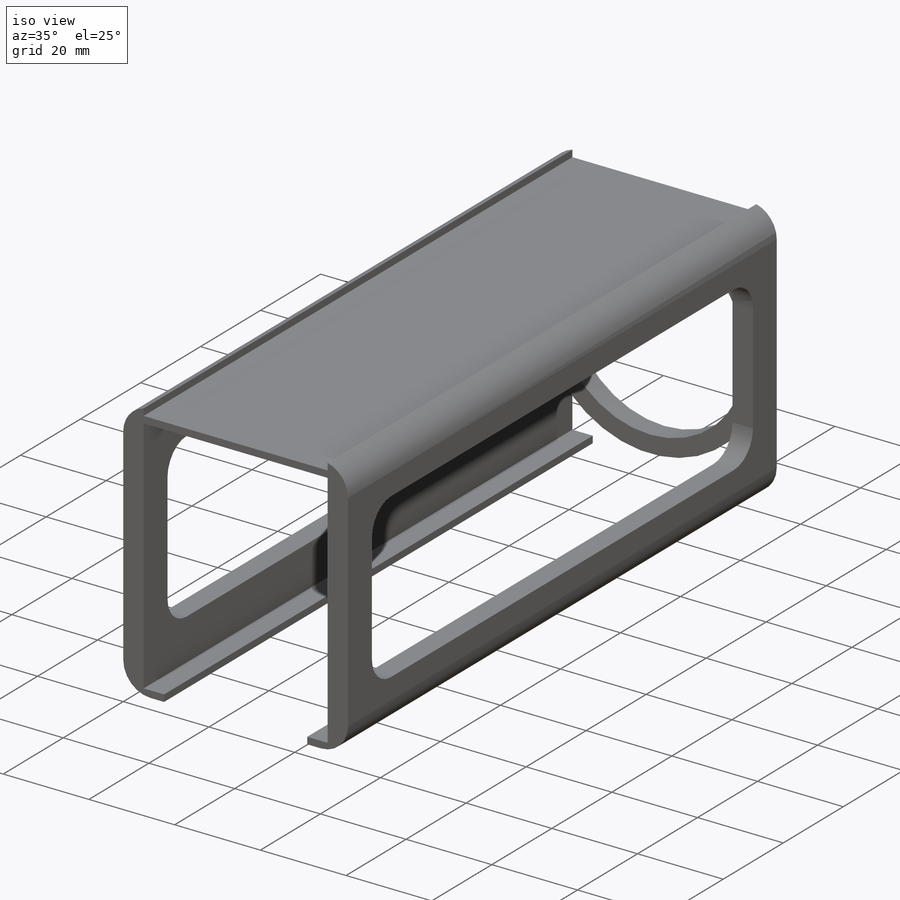
[diagram: iso view]
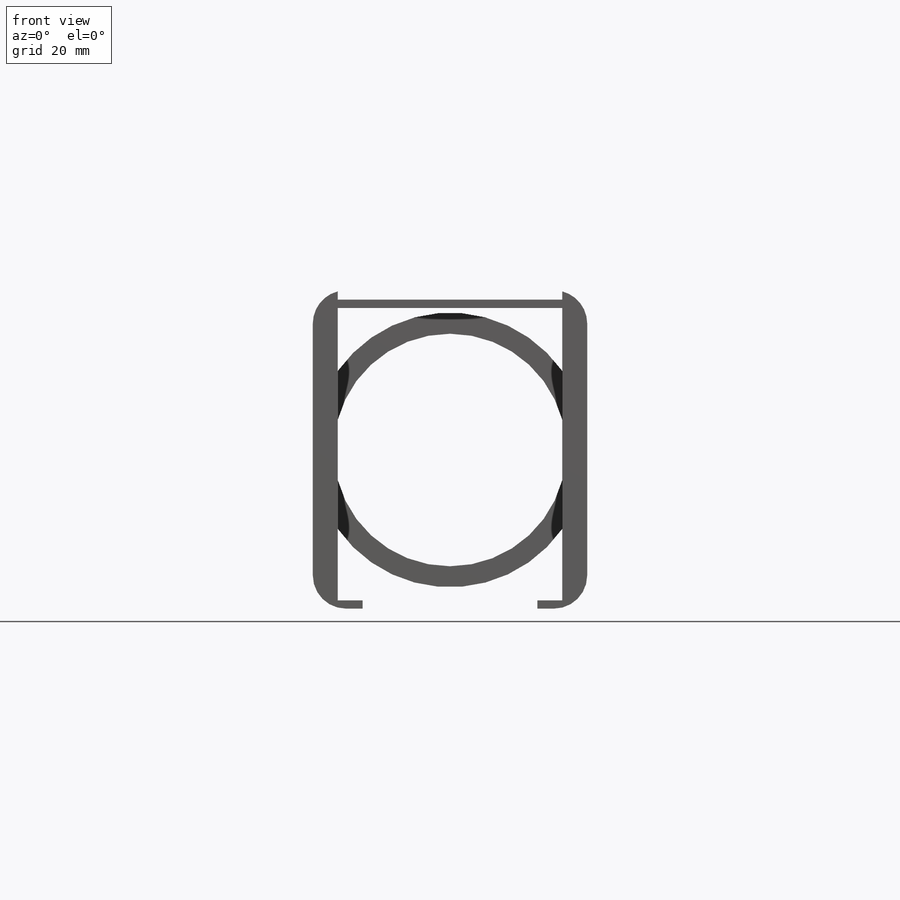
[diagram: front view]
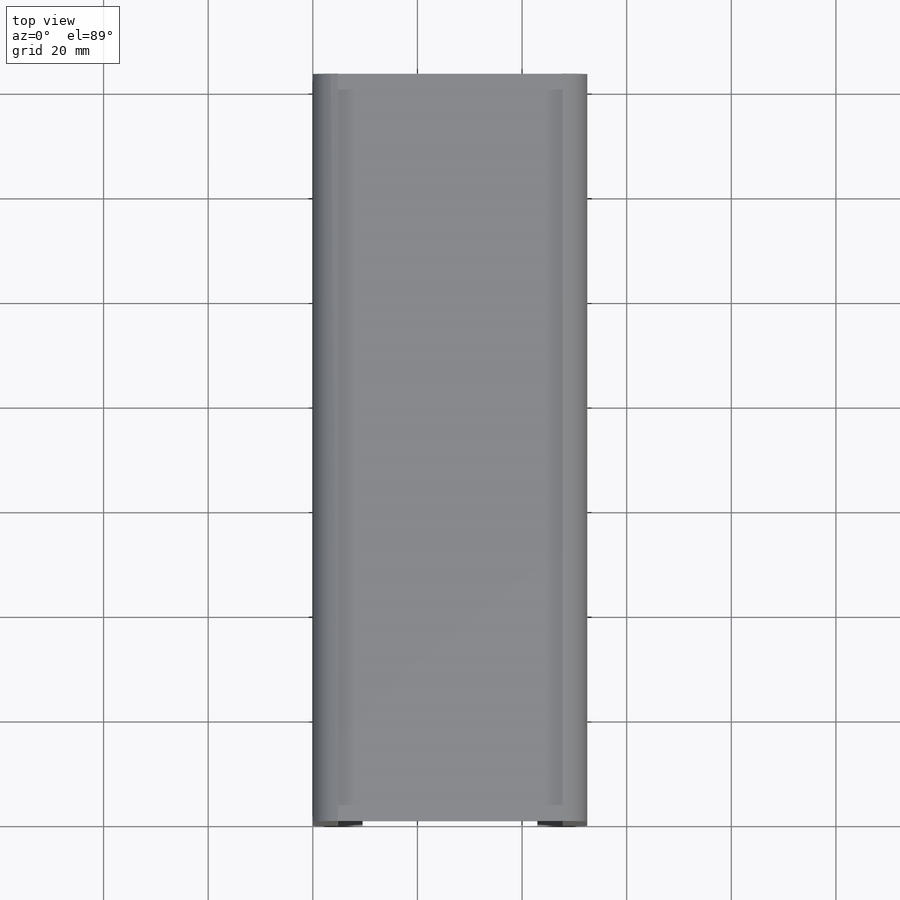
[diagram: top view]
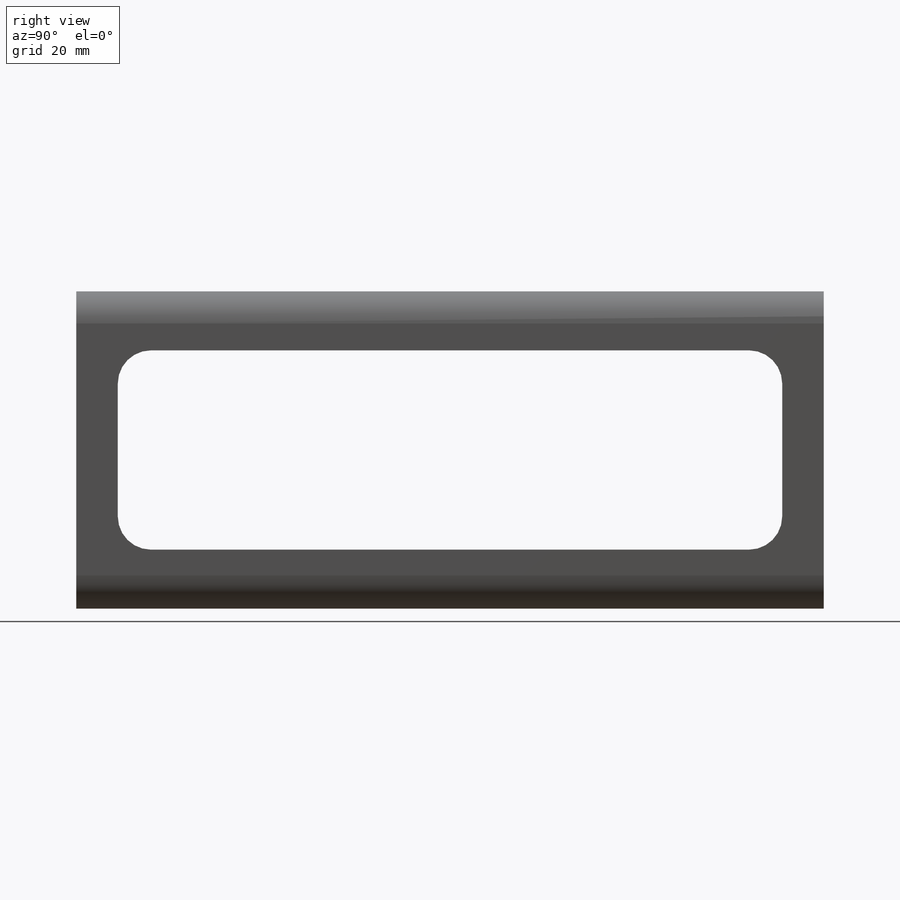
[diagram: right view]
SOLIDWORKS PART (.sldprt)
format: sldprt  version: not decoded by parser v0  size: 309,760 bytes
history: native  units: mm
features: sketch x5, extrude x4, fillet x2, material x1, cut_extrude x1 (+11 scaffold rows collapsed)
feature tree (24):
  scaffold x11  (default folders/planes/origin — collapsed)
  material  "ABS"
  sketch  "Sketch1"  dims[D1=4.7625mm D2=142.875mm D3=4.7625mm D4=42.926mm D5=42.926mm]
  extrude  "Boss-Extrude1"  Depth=1.5875mm
  sketch  "Sketch2"
  extrude  "Boss-Extrude2"  Depth=59.055mm
  sketch  "Sketch3"  dims[D1=127.0mm D2=38.1mm]
  cut_extrude  "Cut-Extrude1"  [1 undecoded]
  sketch  "Sketch4"  dims[D1=44.45mm]
  extrude  "Boss-Extrude3"  Depth=4.7625mm
  sketch  "Sketch5"  dims[c1.D1=6.35mm c1.D2=4.7625mm c1.D3=44.45mm c2.D1=~56.67375mm c2.D2=~0.79375mm]
  fillet  "Fillet1"  Radius=6.35mm
  fillet  "Fillet4"  Radius=6.35mm
  extrude  "Boss-Extrude4"  Depth=142.875mm
decode coverage: 10 of 12 modeling features carry decoded parameters
note: ~ marks probable driven/reference dimensions
note: 1 parameter value undecoded
note: suppression state not decoded; provenance and decode notes live in map.json
